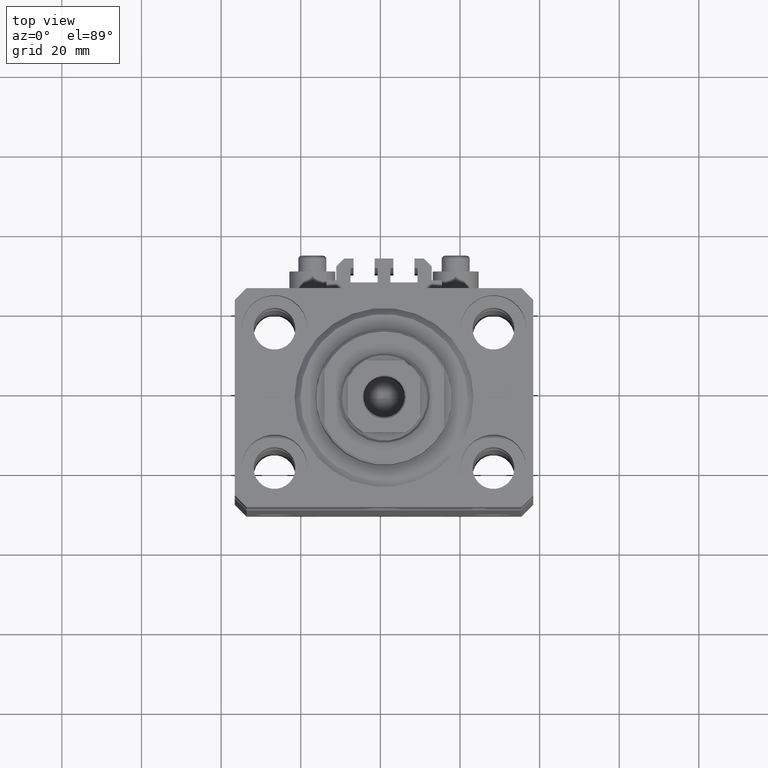
[diagram: clean part render]
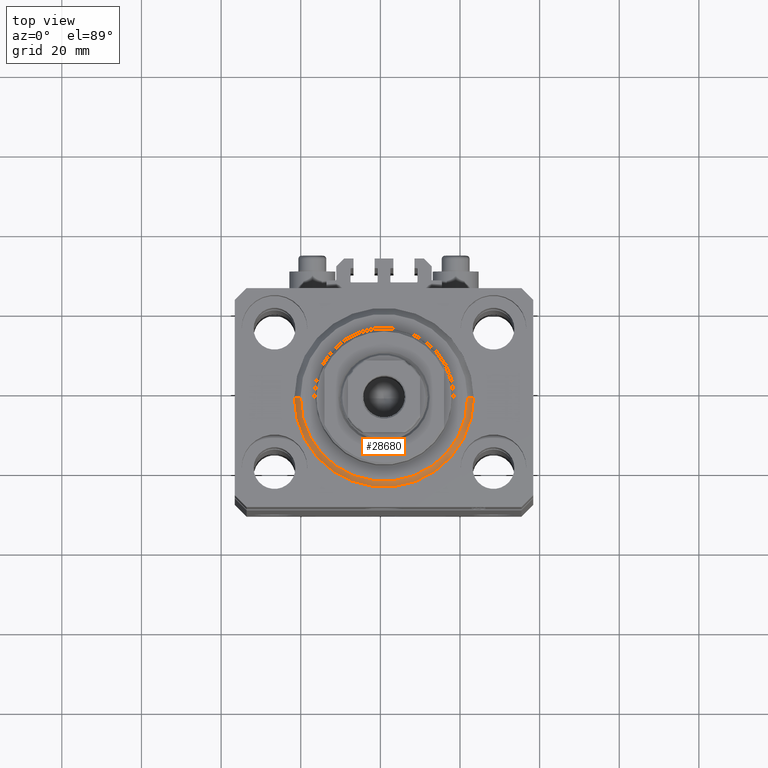
[diagram: same view with one face highlighted and labeled with its STEP entity id]
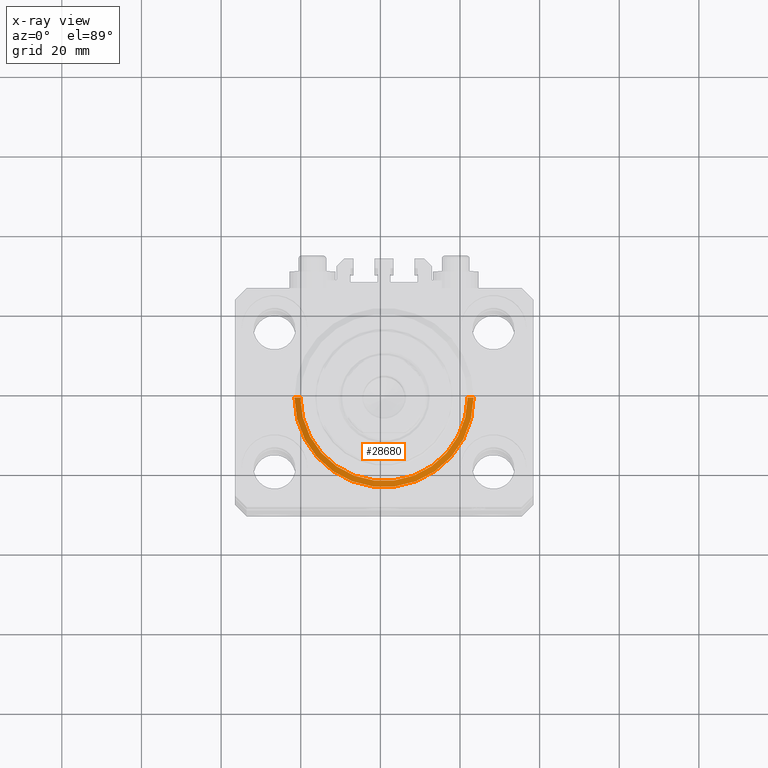
[diagram: x-ray of the same camera — body ghosted, the highlighted face saturated]
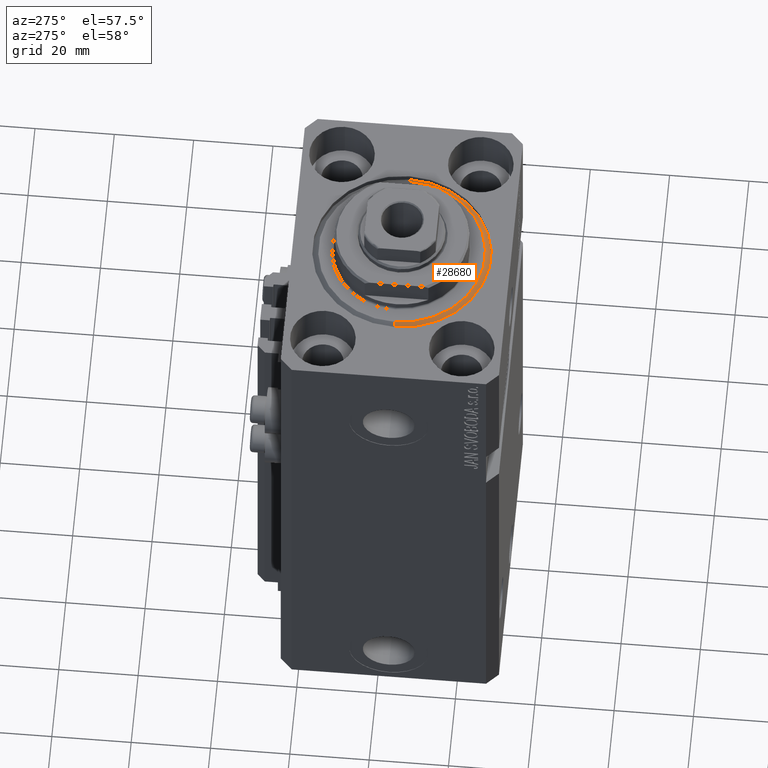
[diagram: same view with one face highlighted and labeled with its STEP entity id]
A machine part, top view. The second image highlights one B-rep face of the part: STEP entity #28680.
The next image is the same camera in x-ray: the body ghosted, the highlighted face saturated — about 0% of this face is hidden behind the body in this view.
A second angle (auxiliary view) of the same face is appended — the face is thin or edge-on in the first view.
In plain terms, the highlighted conical surface has half-angle 45 deg.
Its self-contained STEP definition (entity closure, byte-faithful):
#115 = DIRECTION ( 'NONE',  ( -0.000000000000000000, -0.000000000000000000, 1.000000000000000000 ) ) ;
#1625 = AXIS2_PLACEMENT_3D ( 'NONE', #6281, #44506, #11707 ) ;
#1663 = CIRCLE ( 'NONE', #1625, 22.50000000000000355 ) ;
#2101 = CIRCLE ( 'NONE', #9728, 20.99999999999998934 ) ;
#4315 = LINE ( 'NONE', #29704, #36927 ) ;
#4372 = VERTEX_POINT ( 'NONE', #16660 ) ;
#4432 = DIRECTION ( 'NONE',  ( 0.7071067811865500152, 0.000000000000000000, 0.7071067811865451302 ) ) ;
#4515 = DIRECTION ( 'NONE',  ( 1.000000000000000000, 0.000000000000000000, 0.000000000000000000 ) ) ;
#6281 = CARTESIAN_POINT ( 'NONE',  ( 0.000000000000000000, 0.000000000000000000, 1.500000000000001332 ) ) ;
#6509 = CARTESIAN_POINT ( 'NONE',  ( -20.99999999999998934, 2.663606788145492628E-15, 0.000000000000000000 ) ) ;
#7809 = EDGE_CURVE ( 'NONE', #17887, #16254, #1663, .T. ) ;
#9728 = AXIS2_PLACEMENT_3D ( 'NONE', #18899, #22729, #4515 ) ;
#11707 = DIRECTION ( 'NONE',  ( 1.000000000000000000, 0.000000000000000000, 0.000000000000000000 ) ) ;
#13251 = VERTEX_POINT ( 'NONE', #6509 ) ;
#13604 = CARTESIAN_POINT ( 'NONE',  ( -22.50000000000000355, 0.000000000000000000, 1.500000000000001332 ) ) ;
#14253 = DIRECTION ( 'NONE',  ( 1.000000000000000000, 0.000000000000000000, 0.000000000000000000 ) ) ;
#16254 = VERTEX_POINT ( 'NONE', #22038 ) ;
#16660 = CARTESIAN_POINT ( 'NONE',  ( 20.99999999999998934, 0.000000000000000000, 0.000000000000000000 ) ) ;
#17887 = VERTEX_POINT ( 'NONE', #13604 ) ;
#18899 = CARTESIAN_POINT ( 'NONE',  ( 0.000000000000000000, 0.000000000000000000, 0.000000000000000000 ) ) ;
#19280 = LINE ( 'NONE', #19756, #45332 ) ;
#19706 = AXIS2_PLACEMENT_3D ( 'NONE', #33372, #115, #14253 ) ;
#19756 = CARTESIAN_POINT ( 'NONE',  ( 22.50000000000000355, 0.000000000000000000, 1.500000000000001332 ) ) ;
#22038 = CARTESIAN_POINT ( 'NONE',  ( 22.50000000000000355, 2.755455298081545172E-15, 1.500000000000001332 ) ) ;
#22704 = EDGE_LOOP ( 'NONE', ( #30885, #22770, #47125, #41550 ) ) ;
#22729 = DIRECTION ( 'NONE',  ( -0.000000000000000000, -0.000000000000000000, -1.000000000000000000 ) ) ;
#22770 = ORIENTED_EDGE ( 'NONE', *, *, #24639, .F. ) ;
#24639 = EDGE_CURVE ( 'NONE', #4372, #13251, #2101, .T. ) ;
#28680 = ADVANCED_FACE ( 'NONE', ( #40123 ), #29648, .T. ) ;
#29648 = CONICAL_SURFACE ( 'NONE', #19706, 22.50000000000000355, 0.7853981633974517207 ) ;
#29704 = CARTESIAN_POINT ( 'NONE',  ( -22.50000000000000355, 2.755455298081545172E-15, 1.500000000000001332 ) ) ;
#30885 = ORIENTED_EDGE ( 'NONE', *, *, #45371, .F. ) ;
#32603 = DIRECTION ( 'NONE',  ( -0.7071067811865500152, 8.659560562354963673E-17, 0.7071067811865451302 ) ) ;
#33372 = CARTESIAN_POINT ( 'NONE',  ( 0.000000000000000000, 0.000000000000000000, 1.500000000000001332 ) ) ;
#36927 = VECTOR ( 'NONE', #32603, 1000.000000000000114 ) ;
#40123 = FACE_OUTER_BOUND ( 'NONE', #22704, .T. ) ;
#40958 = EDGE_CURVE ( 'NONE', #4372, #16254, #19280, .T. ) ;
#41550 = ORIENTED_EDGE ( 'NONE', *, *, #7809, .F. ) ;
#44506 = DIRECTION ( 'NONE',  ( -0.000000000000000000, -0.000000000000000000, 1.000000000000000000 ) ) ;
#45332 = VECTOR ( 'NONE', #4432, 1000.000000000000114 ) ;
#45371 = EDGE_CURVE ( 'NONE', #13251, #17887, #4315, .T. ) ;
#47125 = ORIENTED_EDGE ( 'NONE', *, *, #40958, .T. ) ;